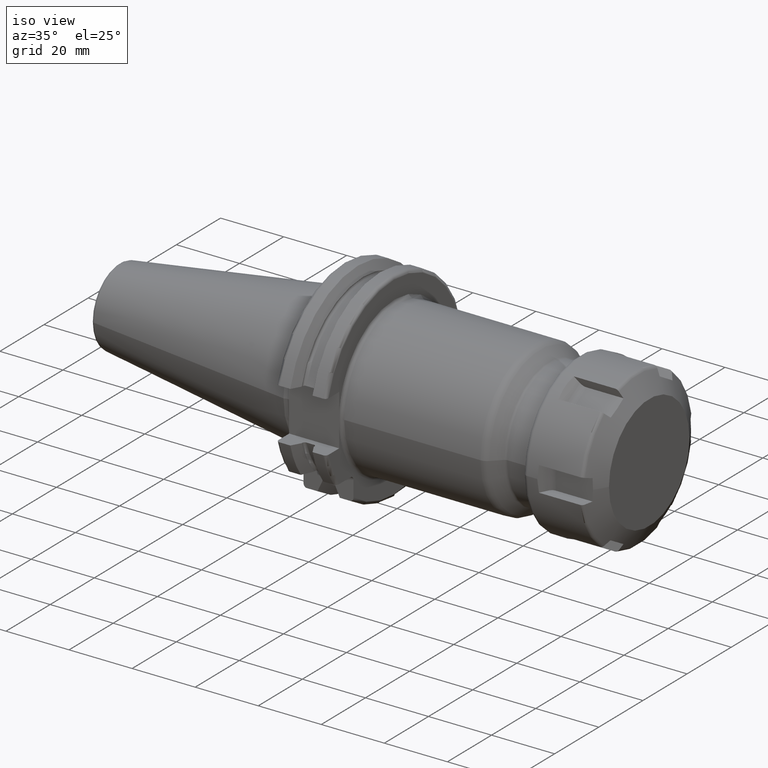
[diagram: clean part render]
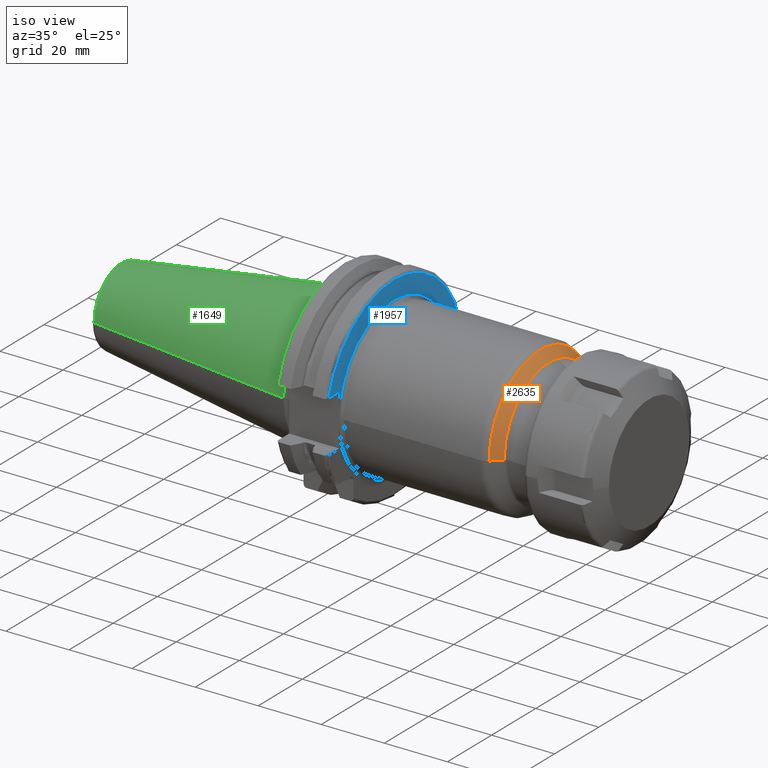
[diagram: same view with three faces highlighted in distinct colors, each labeled with its STEP entity id]
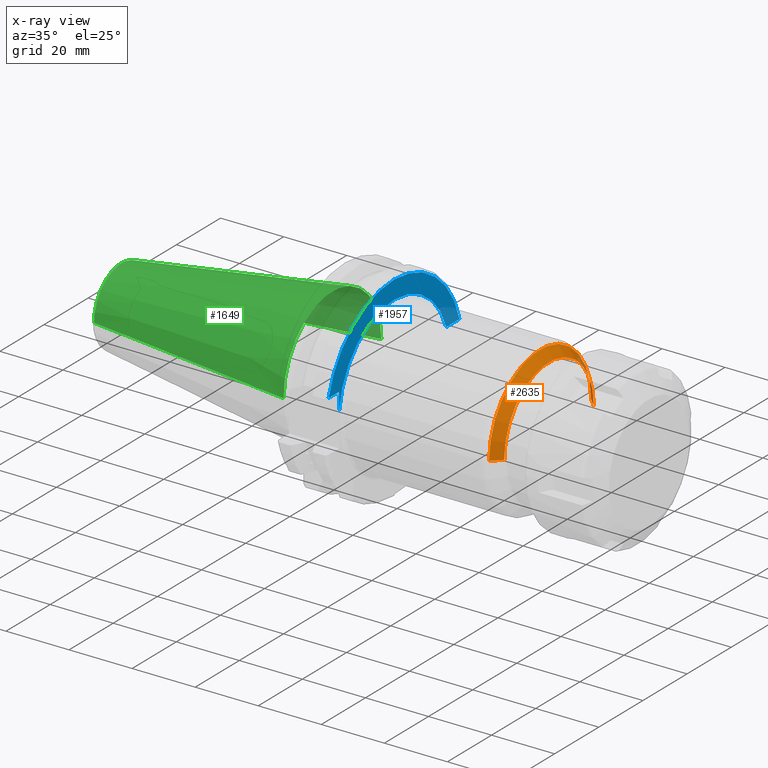
[diagram: x-ray of the same camera — body ghosted, the three highlighted faces saturated]
A machine part, iso view with three faces highlighted in distinct colors.
The next image is the same camera in x-ray (body ghosted, the three faces saturated) — at least one of them is partly hidden behind the body in this view.
Their STEP definitions:

[orange] entity #2635 — the highlighted conical surface has half-angle 45 deg.
#998=DIRECTION('',(-7.071067811865E-1,-7.071067811865E-1,-4.114225504677E-12));
#999=VECTOR('',#998,3.999999999999E0);
#1000=CARTESIAN_POINT('',(6.820710678119E1,-2.029289321881E1,
5.025416010781E-14));
#1001=LINE('',#1000,#999);
#1007=DIRECTION('',(-7.071067811865E-1,7.071067811865E-1,4.113754405671E-12));
#1008=VECTOR('',#1007,3.999999999999E0);
#1009=CARTESIAN_POINT('',(6.820710678119E1,2.029289321881E1,
-5.090320635157E-14));
#1010=LINE('',#1009,#1008);
#1011=CARTESIAN_POINT('',(6.537867965644E1,0.E0,0.E0));
#1012=DIRECTION('',(-1.E0,0.E0,0.E0));
#1013=DIRECTION('',(0.E0,-1.E0,0.E0));
#1014=AXIS2_PLACEMENT_3D('',#1011,#1012,#1013);
#1016=CARTESIAN_POINT('',(6.820710678119E1,0.E0,0.E0));
#1017=DIRECTION('',(1.E0,0.E0,0.E0));
#1018=DIRECTION('',(0.E0,1.E0,0.E0));
#1019=AXIS2_PLACEMENT_3D('',#1016,#1017,#1018);
#1542=CARTESIAN_POINT('',(6.537867965644E1,2.312132034356E1,0.E0));
#1543=CARTESIAN_POINT('',(6.537867965644E1,-2.312132034356E1,0.E0));
#1544=VERTEX_POINT('',#1542);
#1545=VERTEX_POINT('',#1543);
#1569=CARTESIAN_POINT('',(6.820710678119E1,-2.029289321881E1,0.E0));
#1570=CARTESIAN_POINT('',(6.820710678119E1,2.029289321881E1,0.E0));
#1571=VERTEX_POINT('',#1569);
#1572=VERTEX_POINT('',#1570);
#2623=CARTESIAN_POINT('',(6.679289321881E1,0.E0,0.E0));
#2624=DIRECTION('',(-1.E0,0.E0,0.E0));
#2625=DIRECTION('',(0.E0,1.E0,0.E0));
#2626=AXIS2_PLACEMENT_3D('',#2623,#2624,#2625);
#2627=CONICAL_SURFACE('',#2626,2.170710678119E1,4.5E1);
#2628=ORIENTED_EDGE('',*,*,#1840,.T.);
#2629=ORIENTED_EDGE('',*,*,#2618,.F.);
#2631=ORIENTED_EDGE('',*,*,#2630,.T.);
#2632=ORIENTED_EDGE('',*,*,#2614,.T.);
#2633=EDGE_LOOP('',(#2628,#2629,#2631,#2632));
#2634=FACE_OUTER_BOUND('',#2633,.F.);
#2635=ADVANCED_FACE('',(#2634),#2627,.T.);
#1015=CIRCLE('',#1014,2.312132034356E1);
#1020=CIRCLE('',#1019,2.029289321881E1);
#1840=EDGE_CURVE('',#1545,#1544,#1015,.T.);
#2614=EDGE_CURVE('',#1571,#1545,#1001,.T.);
#2618=EDGE_CURVE('',#1572,#1544,#1010,.T.);
#2630=EDGE_CURVE('',#1572,#1571,#1020,.T.);

[blue] entity #1957 — the highlighted planar face has unit normal (1, 0, 0).
#223=CARTESIAN_POINT('',(1.905E1,0.E0,0.E0));
#224=DIRECTION('',(1.E0,0.E0,0.E0));
#225=DIRECTION('',(0.E0,9.460570807303E-1,3.24E-1));
#226=AXIS2_PLACEMENT_3D('',#223,#224,#225);
#228=DIRECTION('',(0.E0,-2.170710244475E-6,9.999999999976E-1));
#229=VECTOR('',#228,5.367590486415E0);
#230=CARTESIAN_POINT('',(1.905E1,-2.484998834852E1,2.732409513598E0));
#231=LINE('',#230,#229);
#232=DIRECTION('',(0.E0,1.E0,0.E0));
#233=VECTOR('',#232,4.826950757280E0);
#234=CARTESIAN_POINT('',(1.905E1,-2.967695075728E1,8.1E0));
#235=LINE('',#234,#233);
#236=DIRECTION('',(0.E0,-1.E0,0.E0));
#237=VECTOR('',#236,6.025523739021E0);
#238=CARTESIAN_POINT('',(1.905E1,2.967695075728E1,8.1E0));
#239=LINE('',#238,#237);
#484=CARTESIAN_POINT('',(1.905E1,2.967695075728E1,8.1E0));
#495=CARTESIAN_POINT('',(1.905E1,0.E0,0.E0));
#496=DIRECTION('',(1.E0,0.E0,0.E0));
#497=DIRECTION('',(0.E0,9.647119303464E-1,2.633075985372E-1));
#498=AXIS2_PLACEMENT_3D('',#495,#496,#497);
#1453=CARTESIAN_POINT('',(1.905E1,-2.967695075728E1,8.1E0));
#1454=CARTESIAN_POINT('',(1.905E1,-2.485E1,8.1E0));
#1455=VERTEX_POINT('',#1453);
#1456=VERTEX_POINT('',#1454);
#1494=VERTEX_POINT('',#484);
#1532=CARTESIAN_POINT('',(1.905E1,2.365142701826E1,8.1E0));
#1533=CARTESIAN_POINT('',(1.905E1,-2.485071613898E1,2.727985956708E0));
#1534=VERTEX_POINT('',#1532);
#1535=VERTEX_POINT('',#1533);
#1941=CARTESIAN_POINT('',(1.905E1,0.E0,0.E0));
#1942=DIRECTION('',(1.E0,0.E0,0.E0));
#1943=DIRECTION('',(0.E0,-1.E0,0.E0));
#1944=AXIS2_PLACEMENT_3D('',#1941,#1942,#1943);
#1945=PLANE('',#1944);
#1947=ORIENTED_EDGE('',*,*,#1946,.T.);
#1949=ORIENTED_EDGE('',*,*,#1948,.T.);
#1951=ORIENTED_EDGE('',*,*,#1950,.F.);
#1953=ORIENTED_EDGE('',*,*,#1952,.F.);
#1954=ORIENTED_EDGE('',*,*,#1784,.T.);
#1955=EDGE_LOOP('',(#1947,#1949,#1951,#1953,#1954));
#1956=FACE_OUTER_BOUND('',#1955,.F.);
#1957=ADVANCED_FACE('',(#1956),#1945,.T.);
#227=CIRCLE('',#226,2.5E1);
#499=CIRCLE('',#498,3.07625E1);
#1784=EDGE_CURVE('',#1494,#1534,#239,.T.);
#1946=EDGE_CURVE('',#1534,#1535,#227,.T.);
#1948=EDGE_CURVE('',#1535,#1456,#231,.T.);
#1950=EDGE_CURVE('',#1455,#1456,#235,.T.);
#1952=EDGE_CURVE('',#1494,#1455,#499,.T.);

[green] entity #1649 — the highlighted conical surface has half-angle 8.298 deg.
#37=CARTESIAN_POINT('',(-6.743710273571E1,0.E0,0.E0));
#38=DIRECTION('',(1.E0,0.E0,0.E0));
#39=DIRECTION('',(0.E0,1.E0,0.E0));
#40=AXIS2_PLACEMENT_3D('',#37,#38,#39);
#42=CARTESIAN_POINT('',(-4.896823332305E-1,0.E0,0.E0));
#43=DIRECTION('',(1.E0,0.E0,0.E0));
#44=DIRECTION('',(0.E0,1.E0,0.E0));
#45=AXIS2_PLACEMENT_3D('',#42,#43,#44);
#47=DIRECTION('',(-9.895312636440E-1,-1.443186691705E-1,0.E0));
#48=VECTOR('',#47,6.765568998391E1);
#49=CARTESIAN_POINT('',(-4.896823332305E-1,2.215358204157E1,0.E0));
#50=LINE('',#49,#48);
#51=DIRECTION('',(-9.895312636440E-1,1.443186691705E-1,0.E0));
#52=VECTOR('',#51,6.765568998391E1);
#53=CARTESIAN_POINT('',(-4.896823332305E-1,-2.215358204157E1,0.E0));
#54=LINE('',#53,#52);
#1311=CARTESIAN_POINT('',(-6.743710273571E1,1.238960290128E1,0.E0));
#1313=VERTEX_POINT('',#1311);
#1315=CARTESIAN_POINT('',(-6.743710273571E1,-1.238960290128E1,0.E0));
#1317=VERTEX_POINT('',#1315);
#1379=CARTESIAN_POINT('',(-4.896823332305E-1,2.215358204157E1,0.E0));
#1380=VERTEX_POINT('',#1379);
#1381=CARTESIAN_POINT('',(-4.896823332305E-1,-2.215358204157E1,0.E0));
#1382=VERTEX_POINT('',#1381);
#1635=CARTESIAN_POINT('',(-3.396339253447E1,0.E0,0.E0));
#1636=DIRECTION('',(1.E0,0.E0,0.E0));
#1637=DIRECTION('',(0.E0,-1.E0,0.E0));
#1638=AXIS2_PLACEMENT_3D('',#1635,#1636,#1637);
#1639=CONICAL_SURFACE('',#1638,1.727159247143E1,8.297826828206E0);
#1641=ORIENTED_EDGE('',*,*,#1640,.F.);
#1643=ORIENTED_EDGE('',*,*,#1642,.T.);
#1645=ORIENTED_EDGE('',*,*,#1644,.T.);
#1646=ORIENTED_EDGE('',*,*,#1628,.F.);
#1647=EDGE_LOOP('',(#1641,#1643,#1645,#1646));
#1648=FACE_OUTER_BOUND('',#1647,.F.);
#1649=ADVANCED_FACE('',(#1648),#1639,.T.);
#41=CIRCLE('',#40,1.238960290128E1);
#46=CIRCLE('',#45,2.215358204157E1);
#1628=EDGE_CURVE('',#1313,#1317,#41,.T.);
#1640=EDGE_CURVE('',#1380,#1313,#50,.T.);
#1642=EDGE_CURVE('',#1380,#1382,#46,.T.);
#1644=EDGE_CURVE('',#1382,#1317,#54,.T.);